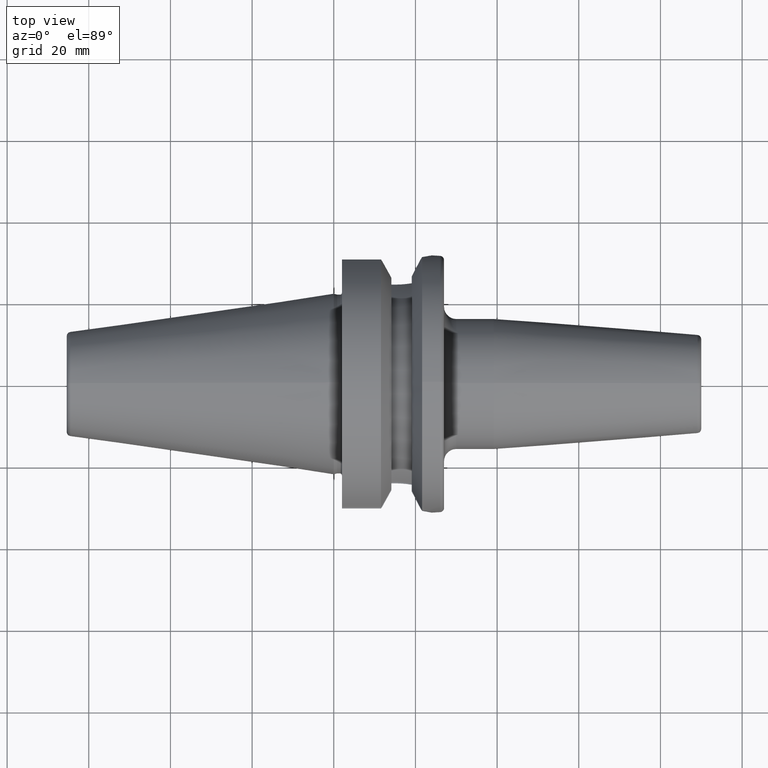
[diagram: clean part render]
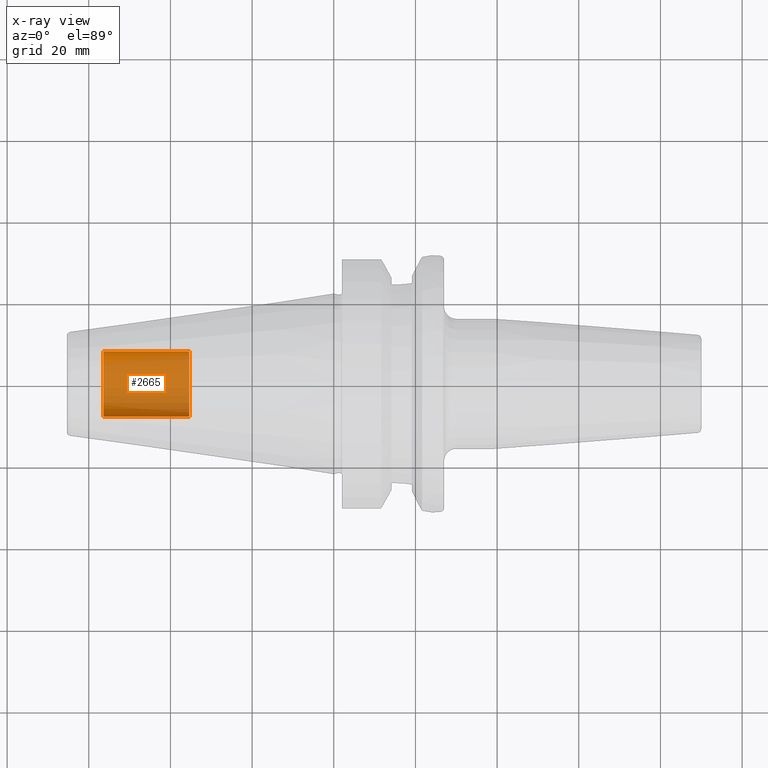
[diagram: x-ray — body ghosted, one internal face saturated and labeled with its STEP entity id]
A machine part, top view, then the same camera in x-ray: the body is ghosted and one INTERNAL B-rep face — a face not visible from any outside direction — is saturated and labeled: STEP entity #2665.
In plain terms, the highlighted cylindrical surface (edge-blend (fillet) strip) has radius 8 mm, axis along (-1, 0, 0).
Its self-contained STEP definition (entity closure, byte-faithful):
#2600=CARTESIAN_POINT('',(-5.64E1,0.E0,0.E0));
#2601=DIRECTION('',(1.E0,0.E0,0.E0));
#2602=DIRECTION('',(0.E0,-1.E0,0.E0));
#2603=AXIS2_PLACEMENT_3D('',#2600,#2601,#2602);
#2610=DIRECTION('',(1.E0,0.E0,0.E0));
#2611=VECTOR('',#2610,2.1E1);
#2612=CARTESIAN_POINT('',(-5.64E1,-8.E0,0.E0));
#2613=LINE('',#2612,#2611);
#2614=DIRECTION('',(1.E0,0.E0,0.E0));
#2615=VECTOR('',#2614,2.1E1);
#2616=CARTESIAN_POINT('',(-5.64E1,8.E0,0.E0));
#2617=LINE('',#2616,#2615);
#2623=CARTESIAN_POINT('',(-3.54E1,0.E0,0.E0));
#2624=DIRECTION('',(-1.E0,0.E0,0.E0));
#2625=DIRECTION('',(0.E0,1.E0,0.E0));
#2626=AXIS2_PLACEMENT_3D('',#2623,#2624,#2625);
#2638=CARTESIAN_POINT('',(-3.54E1,8.E0,0.E0));
#2639=CARTESIAN_POINT('',(-3.54E1,-8.E0,0.E0));
#2640=VERTEX_POINT('',#2638);
#2641=VERTEX_POINT('',#2639);
#2642=CARTESIAN_POINT('',(-5.64E1,8.E0,0.E0));
#2643=CARTESIAN_POINT('',(-5.64E1,-8.E0,0.E0));
#2644=VERTEX_POINT('',#2642);
#2645=VERTEX_POINT('',#2643);
#2650=CARTESIAN_POINT('',(-1.373367445015E1,0.E0,0.E0));
#2651=DIRECTION('',(-1.E0,0.E0,0.E0));
#2652=DIRECTION('',(0.E0,1.E0,0.E0));
#2653=AXIS2_PLACEMENT_3D('',#2650,#2651,#2652);
#2654=CYLINDRICAL_SURFACE('',#2653,8.E0);
#2656=ORIENTED_EDGE('',*,*,#2655,.T.);
#2658=ORIENTED_EDGE('',*,*,#2657,.T.);
#2660=ORIENTED_EDGE('',*,*,#2659,.T.);
#2662=ORIENTED_EDGE('',*,*,#2661,.F.);
#2663=EDGE_LOOP('',(#2656,#2658,#2660,#2662));
#2664=FACE_OUTER_BOUND('',#2663,.F.);
#2665=ADVANCED_FACE('',(#2664),#2654,.F.);
#2604=CIRCLE('',#2603,8.E0);
#2627=CIRCLE('',#2626,8.E0);
#2655=EDGE_CURVE('',#2645,#2644,#2604,.T.);
#2657=EDGE_CURVE('',#2644,#2640,#2617,.T.);
#2659=EDGE_CURVE('',#2640,#2641,#2627,.T.);
#2661=EDGE_CURVE('',#2645,#2641,#2613,.T.);